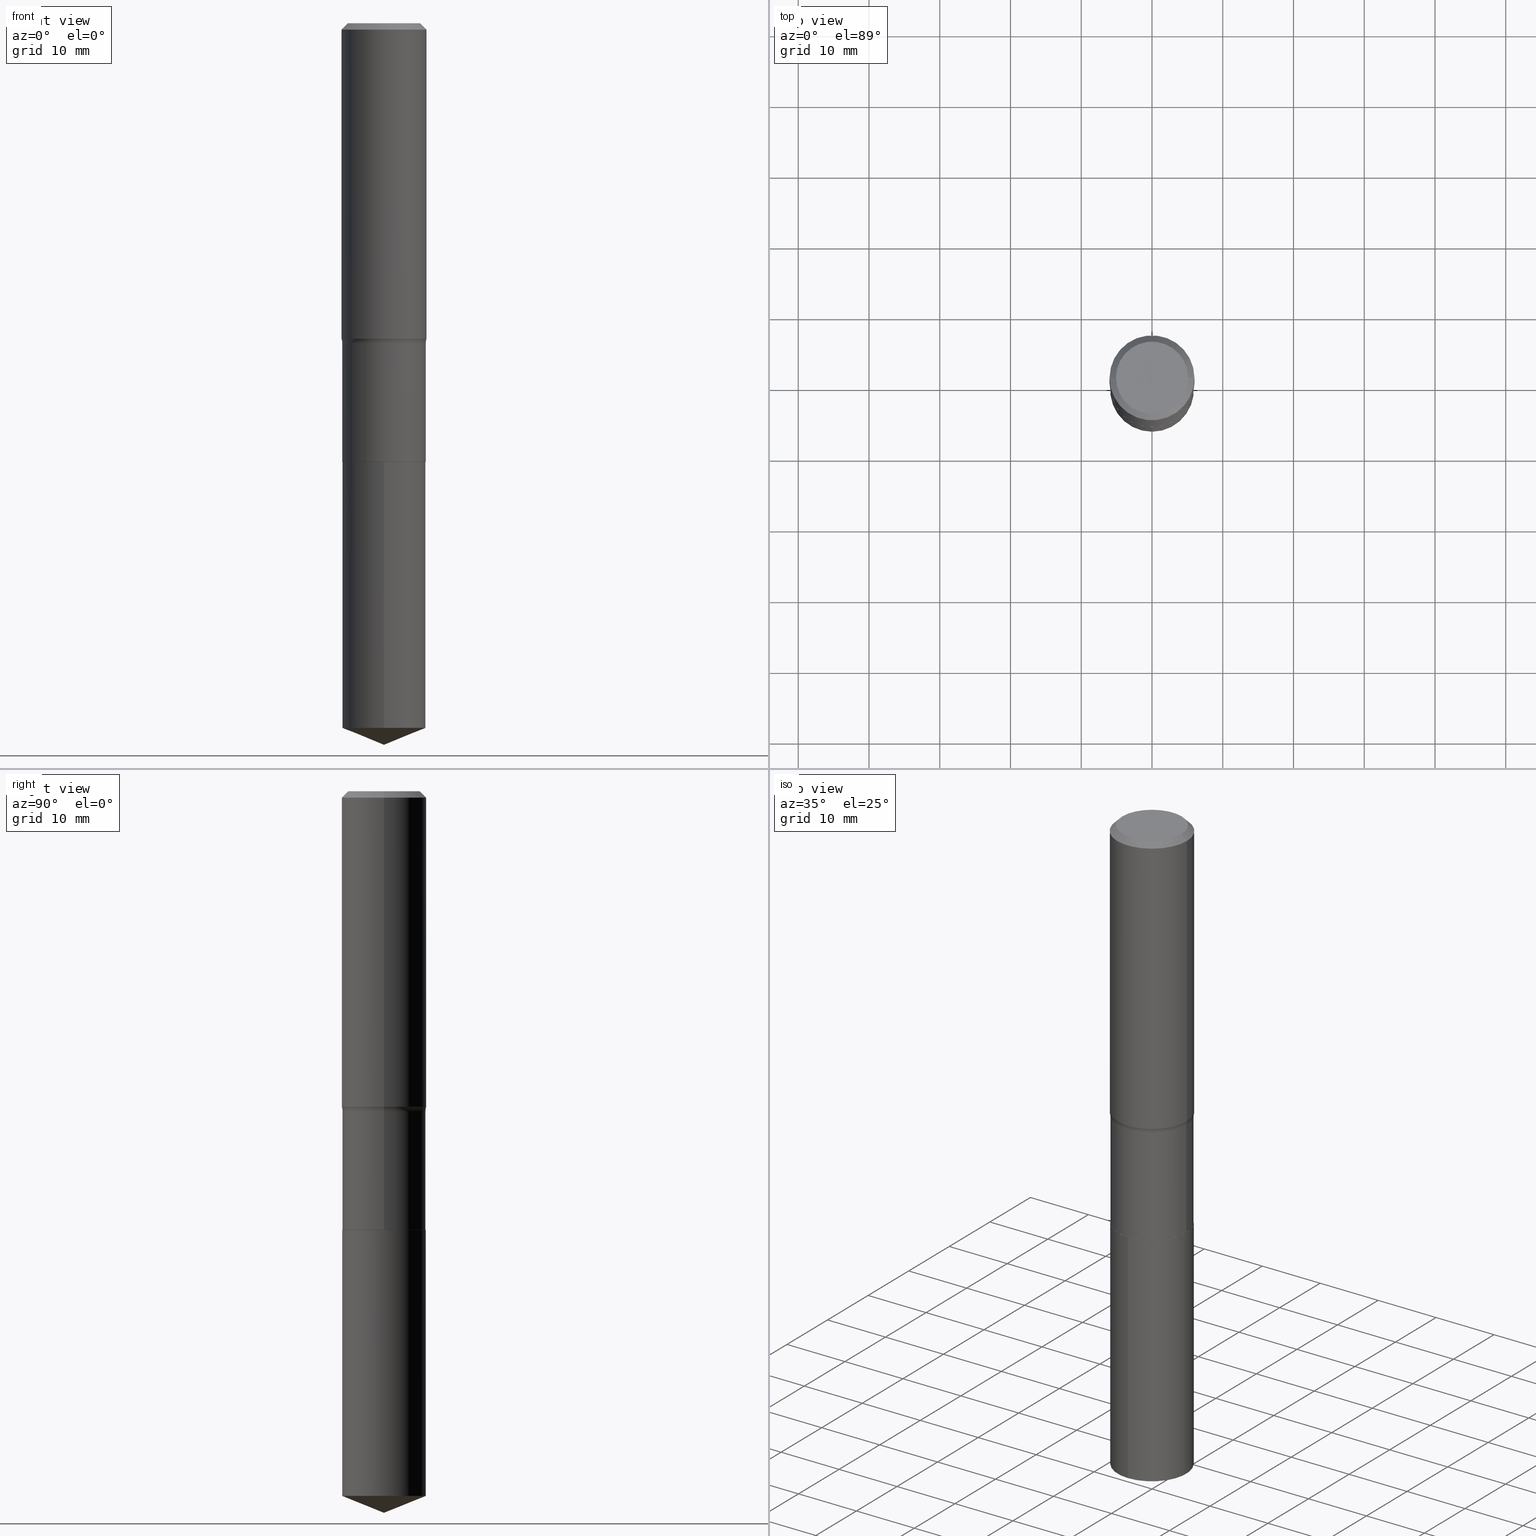
[diagram: canonical four-view strip — front | top / right | iso, engineering-drawing reading convention]
A machine part, canonical four-view strip (front | top / right | iso — engineering-drawing reading convention). The complete STEP part file that produces these views, byte-faithful:
ISO-10303-21;
HEADER;
FILE_DESCRIPTION (( 'STEP AP203' ),
    '1' );
FILE_NAME ('69208.STEP',
    '2024-04-19T17:23:39',
    ( '' ),
    ( '' ),
    'SwSTEP 2.0',
    'SolidWorks 2023',
    '' );
FILE_SCHEMA (( 'CONFIG_CONTROL_DESIGN' ));
ENDSEC;

DATA;
#1 = EDGE_CURVE ( 'NONE', #489, #132, #307, .T. ) ;
#2 = DIRECTION ( 'NONE',  ( 2.438088387897960049E-29, -3.491481338843145188E-15, -1.000000000000000000 ) ) ;
#3 = DIRECTION ( 'NONE',  ( -6.982962677686265922E-15, -1.000000000000000000, 3.527999991817817286E-15 ) ) ;
#4 = CALENDAR_DATE ( 2024, 19, 4 ) ;
#5 = DIRECTION ( 'NONE',  ( -2.445468806185136597E-29, 3.491481338843145583E-15, 1.000000000000000000 ) ) ;
#6 = DIRECTION ( 'NONE',  ( -1.000000000000000000, 6.982962677686266711E-15, 0.000000000000000000 ) ) ;
#7 = CARTESIAN_POINT ( 'NONE',  ( -0.2322999999999999510, -5.718180590457746059E-15, -1.780599999999999961 ) ) ;
#8 = FACE_OUTER_BOUND ( 'NONE', #26, .T. ) ;
#9 = CIRCLE ( 'NONE', #163, 0.2323000000000000065 ) ;
#10 = DIRECTION ( 'NONE',  ( -6.982962677686265922E-15, -1.000000000000000000, 2.351999994545211393E-15 ) ) ;
#11 =( LENGTH_UNIT ( ) NAMED_UNIT ( * ) SI_UNIT ( $, .METRE. ) );
#12 = LINE ( 'NONE', #427, #331 ) ;
#13 = ORIENTED_EDGE ( 'NONE', *, *, #346, .T. ) ;
#14 = LOCAL_TIME ( 13, 23, 39.00000000000000000, #460 ) ;
#15 = SECURITY_CLASSIFICATION ( '', '', #19 ) ;
#16 = VERTEX_POINT ( 'NONE', #221 ) ;
#17 = ORIENTED_EDGE ( 'NONE', *, *, #205, .F. ) ;
#18 = ORIENTED_EDGE ( 'NONE', *, *, #181, .T. ) ;
#19 = SECURITY_CLASSIFICATION_LEVEL ( 'unclassified' ) ;
#20 = AXIS2_PLACEMENT_3D ( 'NONE', #295, #47, #3 ) ;
#21 = ORIENTED_EDGE ( 'NONE', *, *, #309, .F. ) ;
#22 = LINE ( 'NONE', #329, #83 ) ;
#23 = DATE_AND_TIME ( #123, #422 ) ;
#24 = ORIENTED_EDGE ( 'NONE', *, *, #28, .F. ) ;
#25 = DIRECTION ( 'NONE',  ( -6.474490251793185729E-15, -0.9271838545667875353, 0.3746065934159116817 ) ) ;
#26 = EDGE_LOOP ( 'NONE', ( #278, #65, #206, #325 ) ) ;
#27 = DIRECTION ( 'NONE',  ( 1.000000000000000000, -6.982962677686265922E-15, 4.876176775795935232E-29 ) ) ;
#28 = EDGE_CURVE ( 'NONE', #357, #86, #297, .T. ) ;
#29 = EDGE_CURVE ( 'NONE', #132, #321, #423, .T. ) ;
#30 = ORIENTED_EDGE ( 'NONE', *, *, #441, .F. ) ;
#31 = VECTOR ( 'NONE', #25, 39.37007874015748143 ) ;
#32 = CARTESIAN_POINT ( 'NONE',  ( -0.2322999999999999787, 1.650590775170712581E-15, -1.142668621466214566E-29 ) ) ;
#33 = ORIENTED_EDGE ( 'NONE', *, *, #29, .T. ) ;
#34 = DIRECTION ( 'NONE',  ( 0.7071067811865453523, -7.319954787623248157E-15, -0.7071067811865496822 ) ) ;
#35 = CARTESIAN_POINT ( 'NONE',  ( 9.590685138083693087E-29, -1.369313891512540688E-14, -3.921844707738494140 ) ) ;
#36 = DIRECTION ( 'NONE',  ( 1.000000000000000000, -6.982962677686268288E-15, 0.000000000000000000 ) ) ;
#37 = LINE ( 'NONE', #46, #219 ) ;
#38 = PRODUCT_RELATED_PRODUCT_CATEGORY ( 'detail', '', ( #432 ) ) ;
#39 = AXIS2_PLACEMENT_3D ( 'NONE', #173, #326, #93 ) ;
#40 = FACE_OUTER_BOUND ( 'NONE', #68, .T. ) ;
#41 = DIRECTION ( 'NONE',  ( 1.000000000000000000, -6.982962677686267499E-15, 0.000000000000000000 ) ) ;
#42 = CARTESIAN_POINT ( 'NONE',  ( -0.3102999999999999092, -4.012117562880514402E-15, -1.780599999999999961 ) ) ;
#43 = CARTESIAN_POINT ( 'NONE',  ( 4.354401756293253585E-29, -6.216931671944104634E-15, -1.780599999999999961 ) ) ;
#44 = CARTESIAN_POINT ( 'NONE',  ( 0.2318000000000000060, -1.014100754866991103E-14, -2.440900000000000070 ) ) ;
#45 = ADVANCED_FACE ( 'NONE', ( #77 ), #184, .T. ) ;
#46 = CARTESIAN_POINT ( 'NONE',  ( 0.2318000000000000060, -1.014100754866991103E-14, -2.440900000000000070 ) ) ;
#47 = DIRECTION ( 'NONE',  ( -2.445425754346182208E-29, 3.491542991526886614E-15, 1.000000000000000000 ) ) ;
#48 = AXIS2_PLACEMENT_3D ( 'NONE', #98, #370, #27 ) ;
#49 = DIRECTION ( 'NONE',  ( -2.445468806185136597E-29, 3.491481338843145583E-15, 1.000000000000000000 ) ) ;
#50 = COORDINATED_UNIVERSAL_TIME_OFFSET ( 5, 0, .BEHIND. ) ;
#51 = ORIENTED_EDGE ( 'NONE', *, *, #1, .F. ) ;
#52 = APPROVAL_STATUS ( 'not_yet_approved' ) ;
#53 = ADVANCED_FACE ( 'NONE', ( #146 ), #428, .F. ) ;
#54 = AXIS2_PLACEMENT_3D ( 'NONE', #345, #388, #156 ) ;
#55 = CONICAL_SURFACE ( 'NONE', #316, 97.44436430772927338, 1.186823891356147964 ) ;
#56 = ORIENTED_EDGE ( 'NONE', *, *, #125, .T. ) ;
#57 = DATE_AND_TIME ( #88, #300 ) ;
#58 = DIRECTION ( 'NONE',  ( -2.445425754346182208E-29, 3.491542991526886614E-15, 1.000000000000000000 ) ) ;
#59 = AXIS2_PLACEMENT_3D ( 'NONE', #289, #5, #116 ) ;
#60 =( GEOMETRIC_REPRESENTATION_CONTEXT ( 3 ) GLOBAL_UNCERTAINTY_ASSIGNED_CONTEXT ( ( #411 ) ) GLOBAL_UNIT_ASSIGNED_CONTEXT ( ( #178, #110, #73 ) ) REPRESENTATION_CONTEXT ( 'NONE', 'WORKASPACE' ) );
#61 = ORIENTED_EDGE ( 'NONE', *, *, #457, .F. ) ;
#62 = CARTESIAN_POINT ( 'NONE',  ( -0.2007700000000000040, 1.463821008716677338E-15, 4.096137381438094301E-18 ) ) ;
#63 = ORIENTED_EDGE ( 'NONE', *, *, #291, .T. ) ;
#64 = CARTESIAN_POINT ( 'NONE',  ( 5.969144809017299038E-29, -8.522356799982232966E-15, -2.440900000000000070 ) ) ;
#65 = ORIENTED_EDGE ( 'NONE', *, *, #294, .T. ) ;
#66 = DIRECTION ( 'NONE',  ( -2.445468806185136877E-29, 3.491481338843145188E-15, 1.000000000000000000 ) ) ;
#67 = CIRCLE ( 'NONE', #484, 0.07799999999999995826 ) ;
#68 = EDGE_LOOP ( 'NONE', ( #198, #157 ) ) ;
#69 = CARTESIAN_POINT ( 'NONE',  ( -1.001697619218023151E-46, 1.430158722866391908E-32, 4.096137381448114529E-18 ) ) ;
#70 = CARTESIAN_POINT ( 'NONE',  ( -1.622142230026423645E-15, -0.2323000000000136622, -3.921844707738493696 ) ) ;
#71 = EDGE_CURVE ( 'NONE', #489, #97, #255, .T. ) ;
#72 = CARTESIAN_POINT ( 'NONE',  ( 4.354401756293253585E-29, -6.216931671944104634E-15, -1.780599999999999961 ) ) ;
#73 =( NAMED_UNIT ( * ) SI_UNIT ( $, .STERADIAN. ) SOLID_ANGLE_UNIT ( ) );
#74 = DIRECTION ( 'NONE',  ( 1.000000000000000000, -6.982962677686268288E-15, 4.883557194083113462E-29 ) ) ;
#75 = LOCAL_TIME ( 13, 23, 39.00000000000000000, #50 ) ;
#76 = CARTESIAN_POINT ( 'NONE',  ( 5.967922074614207358E-29, -8.520611059312812251E-15, -2.440399999999999903 ) ) ;
#77 = FACE_OUTER_BOUND ( 'NONE', #241, .T. ) ;
#78 = CYLINDRICAL_SURFACE ( 'NONE', #332, 0.2322999999999999787 ) ;
#79 = CYLINDRICAL_SURFACE ( 'NONE', #392, 0.2362000000000001321 ) ;
#80 = CYLINDRICAL_SURFACE ( 'NONE', #20, 0.2323000000000000065 ) ;
#81 = DIRECTION ( 'NONE',  ( 1.000000000000000000, -6.982962677686268288E-15, 0.000000000000000000 ) ) ;
#82 = CIRCLE ( 'NONE', #191, 0.2323000000000000065 ) ;
#83 = VECTOR ( 'NONE', #287, 39.37007874015748143 ) ;
#84 = DATE_AND_TIME ( #344, #14 ) ;
#85 = ADVANCED_FACE ( 'NONE', ( #222 ), #79, .T. ) ;
#86 = VERTEX_POINT ( 'NONE', #7 ) ;
#87 = CC_DESIGN_PERSON_AND_ORGANIZATION_ASSIGNMENT ( #94, #402, ( #350 ) ) ;
#88 = CALENDAR_DATE ( 2024, 19, 4 ) ;
#89 = VERTEX_POINT ( 'NONE', #147 ) ;
#90 = AXIS2_PLACEMENT_3D ( 'NONE', #69, #240, #102 ) ;
#91 = PERSON_AND_ORGANIZATION ( #274, #399 ) ;
#92 = ORIENTED_EDGE ( 'NONE', *, *, #291, .F. ) ;
#93 = DIRECTION ( 'NONE',  ( -6.982962677686265922E-15, -1.000000000000000000, 3.527999991817817286E-15 ) ) ;
#94 = PERSON_AND_ORGANIZATION ( #274, #399 ) ;
#95 = AXIS2_PLACEMENT_3D ( 'NONE', #72, #467, #41 ) ;
#96 = AXIS2_PLACEMENT_3D ( 'NONE', #249, #414, #142 ) ;
#97 = VERTEX_POINT ( 'NONE', #383 ) ;
#98 = CARTESIAN_POINT ( 'NONE',  ( 0.000000000000000000, 0.000000000000000000, 0.000000000000000000 ) ) ;
#99 = VERTEX_POINT ( 'NONE', #372 ) ;
#100 = DIRECTION ( 'NONE',  ( -2.445468806185136597E-29, 3.491481338843145583E-15, 1.000000000000000000 ) ) ;
#101 = ORIENTED_EDGE ( 'NONE', *, *, #341, .F. ) ;
#102 = DIRECTION ( 'NONE',  ( 1.000000000000000000, -6.982962677686266711E-15, 4.876140833081945105E-29 ) ) ;
#103 = CONICAL_SURFACE ( 'NONE', #199, 0.2318000000000000060, 0.7853981633972775267 ) ;
#104 = CIRCLE ( 'NONE', #259, 0.2361999999999999933 ) ;
#105 = ORIENTED_EDGE ( 'NONE', *, *, #408, .F. ) ;
#106 = FACE_OUTER_BOUND ( 'NONE', #286, .T. ) ;
#107 = ADVANCED_FACE ( 'NONE', ( #304 ), #149, .F. ) ;
#108 = EDGE_CURVE ( 'NONE', #165, #16, #186, .T. ) ;
#109 = DIRECTION ( 'NONE',  ( -2.445468806185136597E-29, 3.491481338843145583E-15, 1.000000000000000000 ) ) ;
#110 =( NAMED_UNIT ( * ) PLANE_ANGLE_UNIT ( ) SI_UNIT ( $, .RADIAN. ) );
#111 = CARTESIAN_POINT ( 'NONE',  ( 5.969144809017300159E-29, -8.522356799982234543E-15, -2.440900000000000070 ) ) ;
#112 = FACE_OUTER_BOUND ( 'NONE', #129, .T. ) ;
#113 = EDGE_CURVE ( 'NONE', #16, #165, #82, .T. ) ;
#114 = DIRECTION ( 'NONE',  ( -2.445468806185136597E-29, 3.491481338843145583E-15, 1.000000000000000000 ) ) ;
#115 = CARTESIAN_POINT ( 'NONE',  ( -0.2361999999999999933, 1.525672600634282748E-15, -0.03543000000000021826 ) ) ;
#116 = DIRECTION ( 'NONE',  ( 1.000000000000000000, -6.982962677686265922E-15, 0.000000000000000000 ) ) ;
#117 = CARTESIAN_POINT ( 'NONE',  ( 9.590685138083693087E-29, -1.369313891512540688E-14, -3.921844707738494140 ) ) ;
#118 = APPLICATION_CONTEXT ( 'configuration controlled 3d designs of mechanical parts and assemblies' ) ;
#119 = DESIGN_CONTEXT ( 'detailed design', #118, 'design' ) ;
#120 = PERSON_AND_ORGANIZATION ( #274, #399 ) ;
#121 = DIRECTION ( 'NONE',  ( -6.982962677686265922E-15, -1.000000000000000000, 3.527999991817817286E-15 ) ) ;
#122 = CIRCLE ( 'NONE', #248, 0.2323000000000000065 ) ;
#123 = CALENDAR_DATE ( 2024, 19, 4 ) ;
#124 = ORIENTED_EDGE ( 'NONE', *, *, #448, .T. ) ;
#125 = EDGE_CURVE ( 'NONE', #474, #404, #37, .T. ) ;
#126 = EDGE_LOOP ( 'NONE', ( #245, #51, #472, #215 ) ) ;
#127 = CIRCLE ( 'NONE', #143, 0.2323000000000000065 ) ;
#128 = CIRCLE ( 'NONE', #238, 0.07799999999999995826 ) ;
#129 = EDGE_LOOP ( 'NONE', ( #101, #18, #260, #136 ) ) ;
#130 = DIRECTION ( 'NONE',  ( -2.445425754346182208E-29, 3.491542991526886614E-15, 1.000000000000000000 ) ) ;
#131 = DATE_AND_TIME ( #314, #431 ) ;
#132 = VERTEX_POINT ( 'NONE', #266 ) ;
#133 = CARTESIAN_POINT ( 'NONE',  ( 4.294841159874141345E-29, -6.131894925451270477E-15, -1.756244507806245192 ) ) ;
#134 = APPROVAL_PERSON_ORGANIZATION ( #475, #469, #320 ) ;
#135 = CC_DESIGN_SECURITY_CLASSIFICATION ( #15, ( #350 ) ) ;
#136 = ORIENTED_EDGE ( 'NONE', *, *, #175, .F. ) ;
#137 = FACE_OUTER_BOUND ( 'NONE', #318, .T. ) ;
#138 = ORIENTED_EDGE ( 'NONE', *, *, #113, .T. ) ;
#139 = DIRECTION ( 'NONE',  ( 1.000000000000000000, -6.982962677686266711E-15, 0.000000000000000000 ) ) ;
#140 = ORIENTED_EDGE ( 'NONE', *, *, #220, .T. ) ;
#141 = CYLINDRICAL_SURFACE ( 'NONE', #48, 0.2322999999999999787 ) ;
#142 = DIRECTION ( 'NONE',  ( 1.000000000000000000, 0.000000000000000000, 0.000000000000000000 ) ) ;
#143 = AXIS2_PLACEMENT_3D ( 'NONE', #455, #109, #252 ) ;
#144 = DIRECTION ( 'NONE',  ( 1.000000000000000000, -6.982962677686266711E-15, 4.876176775795936353E-29 ) ) ;
#145 = CARTESIAN_POINT ( 'NONE',  ( -1.622142230026459933E-15, -0.2323000000000085552, -2.440899999999999181 ) ) ;
#146 = FACE_OUTER_BOUND ( 'NONE', #406, .T. ) ;
#147 = CARTESIAN_POINT ( 'NONE',  ( -0.2318000000000000060, -6.872669511316210280E-15, -2.440900000000000070 ) ) ;
#148 = DIRECTION ( 'NONE',  ( -2.445468806185136597E-29, 3.491481338843145583E-15, 1.000000000000000000 ) ) ;
#149 = TOROIDAL_SURFACE ( 'NONE', #421, 0.3102999999999999092, 0.07799999999999995826 ) ;
#150 = DIRECTION ( 'NONE',  ( 1.000000000000000000, -6.982962677686268288E-15, 4.883557194083113462E-29 ) ) ;
#151 = DIRECTION ( 'NONE',  ( -2.445425754346182208E-29, 3.491542991526886220E-15, 1.000000000000000000 ) ) ;
#152 = APPROVAL_PERSON_ORGANIZATION ( #91, #189, #477 ) ;
#153 = PERSON_AND_ORGANIZATION_ROLE ( 'design_owner' ) ;
#154 = DIRECTION ( 'NONE',  ( -2.445425754346182208E-29, 3.491542991526886614E-15, 1.000000000000000000 ) ) ;
#155 = DIRECTION ( 'NONE',  ( 2.445425754346182208E-29, -3.491542991526886220E-15, -1.000000000000000000 ) ) ;
#156 = DIRECTION ( 'NONE',  ( -1.000000000000000000, 6.982962677686266711E-15, 0.000000000000000000 ) ) ;
#157 = ORIENTED_EDGE ( 'NONE', *, *, #205, .T. ) ;
#158 = ORIENTED_EDGE ( 'NONE', *, *, #226, .T. ) ;
#159 = AXIS2_PLACEMENT_3D ( 'NONE', #43, #381, #74 ) ;
#160 = EDGE_LOOP ( 'NONE', ( #92, #158, #169, #30 ) ) ;
#161 = CC_DESIGN_PERSON_AND_ORGANIZATION_ASSIGNMENT ( #164, #317, ( #15 ) ) ;
#162 = VECTOR ( 'NONE', #34, 39.37007874015748143 ) ;
#163 = AXIS2_PLACEMENT_3D ( 'NONE', #64, #237, #204 ) ;
#164 = PERSON_AND_ORGANIZATION ( #274, #399 ) ;
#165 = VERTEX_POINT ( 'NONE', #70 ) ;
#166 = LINE ( 'NONE', #32, #412 ) ;
#167 = ORIENTED_EDGE ( 'NONE', *, *, #371, .F. ) ;
#168 = CARTESIAN_POINT ( 'NONE',  ( 5.969144809017300159E-29, -8.522356799982234543E-15, -2.440900000000000070 ) ) ;
#169 = ORIENTED_EDGE ( 'NONE', *, *, #371, .T. ) ;
#170 = CARTESIAN_POINT ( 'NONE',  ( -0.2318000000000000060, -6.875318738490322270E-15, -2.440900000000000070 ) ) ;
#171 = CIRCLE ( 'NONE', #201, 0.2007700000000000040 ) ;
#172 = ORIENTED_EDGE ( 'NONE', *, *, #244, .T. ) ;
#173 = CARTESIAN_POINT ( 'NONE',  ( 5.969144809017299038E-29, -8.522356799982232966E-15, -2.440900000000000070 ) ) ;
#174 = ORIENTED_EDGE ( 'NONE', *, *, #108, .F. ) ;
#175 = EDGE_CURVE ( 'NONE', #86, #357, #437, .T. ) ;
#176 = LINE ( 'NONE', #170, #298 ) ;
#177 = CARTESIAN_POINT ( 'NONE',  ( 4.354401756293253585E-29, -6.216931671944104634E-15, -1.780599999999999961 ) ) ;
#178 =( CONVERSION_BASED_UNIT ( 'INCH', #373 ) LENGTH_UNIT ( ) NAMED_UNIT ( #263 ) );
#179 = AXIS2_PLACEMENT_3D ( 'NONE', #182, #224, #418 ) ;
#180 = CARTESIAN_POINT ( 'NONE',  ( -5.008488096090115757E-47, 7.150793614331959538E-33, 2.048068690724057264E-18 ) ) ;
#181 = EDGE_CURVE ( 'NONE', #447, #404, #127, .T. ) ;
#182 = CARTESIAN_POINT ( 'NONE',  ( 0.000000000000000000, 0.000000000000000000, 0.000000000000000000 ) ) ;
#183 = CARTESIAN_POINT ( 'NONE',  ( 0.2323000000000000065, -1.014275328933933174E-14, -2.440399999999999903 ) ) ;
#184 = CYLINDRICAL_SURFACE ( 'NONE', #179, 0.2362000000000001321 ) ;
#185 = DIRECTION ( 'NONE',  ( -2.445468806185136597E-29, 3.491481338843145583E-15, 1.000000000000000000 ) ) ;
#186 = CIRCLE ( 'NONE', #279, 0.2323000000000000065 ) ;
#187 = CIRCLE ( 'NONE', #430, 0.2318000000000000060 ) ;
#188 = CARTESIAN_POINT ( 'NONE',  ( 0.2362000000000002431, -7.781270709920767791E-15, -1.756244507806245192 ) ) ;
#189 = APPROVAL ( #272, 'UNSPECIFIED' ) ;
#190 = FACE_OUTER_BOUND ( 'NONE', #160, .T. ) ;
#191 = AXIS2_PLACEMENT_3D ( 'NONE', #35, #154, #10 ) ;
#192 = CC_DESIGN_APPROVAL ( #469, ( #350 ) ) ;
#193 = ADVANCED_FACE ( 'NONE', ( #417 ), #374, .F. ) ;
#194 = ORIENTED_EDGE ( 'NONE', *, *, #294, .F. ) ;
#195 = APPROVAL_STATUS ( 'not_yet_approved' ) ;
#196 = ORIENTED_EDGE ( 'NONE', *, *, #403, .T. ) ;
#197 = PERSON_AND_ORGANIZATION ( #274, #399 ) ;
#198 = ORIENTED_EDGE ( 'NONE', *, *, #356, .T. ) ;
#199 = AXIS2_PLACEMENT_3D ( 'NONE', #111, #49, #81 ) ;
#200 = CARTESIAN_POINT ( 'NONE',  ( -0.2361999999999999933, -1.449497112777884254E-15, -0.03543000000000021826 ) ) ;
#201 = AXIS2_PLACEMENT_3D ( 'NONE', #319, #407, #364 ) ;
#202 = ADVANCED_FACE ( 'NONE', ( #458 ), #103, .T. ) ;
#203 = ORIENTED_EDGE ( 'NONE', *, *, #270, .T. ) ;
#204 = DIRECTION ( 'NONE',  ( -6.982962677686265922E-15, -1.000000000000000000, 3.527999991817817286E-15 ) ) ;
#205 = EDGE_CURVE ( 'NONE', #348, #308, #210, .T. ) ;
#206 = ORIENTED_EDGE ( 'NONE', *, *, #356, .F. ) ;
#207 = CARTESIAN_POINT ( 'NONE',  ( 0.2322999999999999510, -7.839073901970624126E-15, -1.780599999999999961 ) ) ;
#208 = ORIENTED_EDGE ( 'NONE', *, *, #226, .F. ) ;
#209 = CARTESIAN_POINT ( 'NONE',  ( 0.2361999999999999933, -1.744152810908849053E-15, -0.03543000000000021826 ) ) ;
#210 = CIRCLE ( 'NONE', #397, 0.2323000000000000065 ) ;
#211 = CONICAL_SURFACE ( 'NONE', #393, 97.44436430772927338, 1.186823891356147964 ) ;
#212 = EDGE_LOOP ( 'NONE', ( #203, #172, #236, #409 ) ) ;
#213 = DIRECTION ( 'NONE',  ( -6.982962677686265133E-15, -1.000000000000000000, 3.498761904101797187E-15 ) ) ;
#214 = ADVANCED_FACE ( 'NONE', ( #190 ), #258, .T. ) ;
#215 = ORIENTED_EDGE ( 'NONE', *, *, #28, .T. ) ;
#216 = ORIENTED_EDGE ( 'NONE', *, *, #1, .T. ) ;
#217 = DIRECTION ( 'NONE',  ( 1.000000000000000000, -6.982962677686265922E-15, 0.000000000000000000 ) ) ;
#218 = EDGE_CURVE ( 'NONE', #404, #357, #12, .T. ) ;
#219 = VECTOR ( 'NONE', #343, 39.37007874015748143 ) ;
#220 = EDGE_CURVE ( 'NONE', #132, #489, #315, .T. ) ;
#221 = CARTESIAN_POINT ( 'NONE',  ( 1.650590775170807836E-15, 0.2322999999999862675, -3.921844707738494584 ) ) ;
#222 = FACE_OUTER_BOUND ( 'NONE', #353, .T. ) ;
#223 = DIRECTION ( 'NONE',  ( -2.445468806185136597E-29, 3.491481338843145583E-15, 1.000000000000000000 ) ) ;
#224 = DIRECTION ( 'NONE',  ( -2.445468806185136597E-29, 3.491481338843145583E-15, 1.000000000000000000 ) ) ;
#225 = DIRECTION ( 'NONE',  ( 1.000000000000000000, -6.982962677686265922E-15, 4.876176775795935232E-29 ) ) ;
#226 = EDGE_CURVE ( 'NONE', #99, #97, #405, .T. ) ;
#227 = DIRECTION ( 'NONE',  ( -2.445425754346182208E-29, 3.491542991526886614E-15, 1.000000000000000000 ) ) ;
#228 = AXIS2_PLACEMENT_3D ( 'NONE', #337, #334, #6 ) ;
#229 = CC_DESIGN_APPROVAL ( #189, ( #15 ) ) ;
#230 = PERSON_AND_ORGANIZATION_ROLE ( 'creator' ) ;
#231 = VERTEX_POINT ( 'NONE', #285 ) ;
#232 = ORIENTED_EDGE ( 'NONE', *, *, #181, .F. ) ;
#233 = CLOSED_SHELL ( 'NONE', ( #435, #302, #310, #351, #466 ) ) ;
#234 = AXIS2_PLACEMENT_3D ( 'NONE', #253, #155, #290 ) ;
#235 = ADVANCED_FACE ( 'NONE', ( #106 ), #141, .T. ) ;
#236 = ORIENTED_EDGE ( 'NONE', *, *, #403, .F. ) ;
#237 = DIRECTION ( 'NONE',  ( -2.445425754346182208E-29, 3.491542991526886614E-15, 1.000000000000000000 ) ) ;
#238 = AXIS2_PLACEMENT_3D ( 'NONE', #396, #359, #277 ) ;
#239 = EDGE_LOOP ( 'NONE', ( #194, #138, #124, #17 ) ) ;
#240 = DIRECTION ( 'NONE',  ( -2.445468806185136597E-29, 3.491481338843145583E-15, 1.000000000000000000 ) ) ;
#241 = EDGE_LOOP ( 'NONE', ( #439, #140, #450, #61 ) ) ;
#242 = CC_DESIGN_DATE_AND_TIME_ASSIGNMENT ( #257, #380, ( #355 ) ) ;
#243 = FACE_OUTER_BOUND ( 'NONE', #239, .T. ) ;
#244 = EDGE_CURVE ( 'NONE', #89, #447, #176, .T. ) ;
#245 = ORIENTED_EDGE ( 'NONE', *, *, #400, .F. ) ;
#246 = DIRECTION ( 'NONE',  ( -2.445468806185136597E-29, 3.491481338843145583E-15, 1.000000000000000000 ) ) ;
#247 = AXIS2_PLACEMENT_3D ( 'NONE', #180, #2, #292 ) ;
#248 = AXIS2_PLACEMENT_3D ( 'NONE', #76, #223, #217 ) ;
#249 = CARTESIAN_POINT ( 'NONE',  ( 0.000000000000000000, 0.000000000000000000, 0.000000000000000000 ) ) ;
#250 = VERTEX_POINT ( 'NONE', #62 ) ;
#251 = DIRECTION ( 'NONE',  ( 1.000000000000000000, -6.982962677686266711E-15, 0.000000000000000000 ) ) ;
#252 = DIRECTION ( 'NONE',  ( 1.000000000000000000, -6.982962677686265922E-15, 0.000000000000000000 ) ) ;
#253 = CARTESIAN_POINT ( 'NONE',  ( 5.969144809017299038E-29, -8.522356799982232966E-15, -2.440900000000000070 ) ) ;
#254 = APPROVAL ( #52, 'UNSPECIFIED' ) ;
#255 = LINE ( 'NONE', #464, #442 ) ;
#256 = DIRECTION ( 'NONE',  ( 6.588037525764799179E-15, 0.9271838545667900888, 0.3746065934159051869 ) ) ;
#257 = DATE_AND_TIME ( #4, #75 ) ;
#258 = CONICAL_SURFACE ( 'NONE', #54, 0.2361999999999999933, 0.7853981633974452814 ) ;
#259 = AXIS2_PLACEMENT_3D ( 'NONE', #482, #488, #139 ) ;
#260 = ORIENTED_EDGE ( 'NONE', *, *, #218, .T. ) ;
#261 = LINE ( 'NONE', #115, #366 ) ;
#262 = DIRECTION ( 'NONE',  ( -2.445425754346182208E-29, 3.491542991526886614E-15, 1.000000000000000000 ) ) ;
#263 = DIMENSIONAL_EXPONENTS ( 1.000000000000000000, 0.000000000000000000, 0.000000000000000000, 0.000000000000000000, 0.000000000000000000, 0.000000000000000000, 0.000000000000000000 ) ;
#264 = DIRECTION ( 'NONE',  ( -2.438088387897960049E-29, 3.491481338843145188E-15, 1.000000000000000000 ) ) ;
#265 = EDGE_CURVE ( 'NONE', #89, #474, #342, .T. ) ;
#266 = CARTESIAN_POINT ( 'NONE',  ( -0.2362000000000002431, -4.453592983585912505E-15, -1.756244507806245192 ) ) ;
#267 = APPLICATION_PROTOCOL_DEFINITION ( 'international standard', 'config_control_design', 1994, #118 ) ;
#268 = CIRCLE ( 'NONE', #90, 0.2007700000000000040 ) ;
#269 = PRODUCT_DEFINITION_SHAPE ( 'NONE', 'NONE',  #355 ) ;
#270 = EDGE_CURVE ( 'NONE', #474, #89, #187, .T. ) ;
#271 = ORIENTED_EDGE ( 'NONE', *, *, #265, .T. ) ;
#272 = APPROVAL_STATUS ( 'not_yet_approved' ) ;
#273 = CC_DESIGN_DATE_AND_TIME_ASSIGNMENT ( #131, #349, ( #15 ) ) ;
#274 = PERSON ( 'UNSPECIFIED', 'UNSPECIFIED', 'UNSPECIFIED', ('UNSPECIFIED'), ('UNSPECIFIED'), ('UNSPECIFIED') ) ;
#275 = COORDINATED_UNIVERSAL_TIME_OFFSET ( 5, 0, .BEHIND. ) ;
#276 = ORIENTED_EDGE ( 'NONE', *, *, #265, .F. ) ;
#277 = DIRECTION ( 'NONE',  ( 1.000000000000000000, -6.982962677686274599E-15, 0.000000000000000000 ) ) ;
#278 = ORIENTED_EDGE ( 'NONE', *, *, #108, .T. ) ;
#279 = AXIS2_PLACEMENT_3D ( 'NONE', #117, #262, #425 ) ;
#280 = DIRECTION ( 'NONE',  ( 1.000000000000000000, -6.982962677686268288E-15, 0.000000000000000000 ) ) ;
#281 = CC_DESIGN_APPROVAL ( #254, ( #355 ) ) ;
#282 = EDGE_LOOP ( 'NONE', ( #360, #276 ) ) ;
#283 = CARTESIAN_POINT ( 'NONE',  ( -8.645640321485652588E-28, 1.234414837980197635E-13, 35.35437874015748605 ) ) ;
#284 = EDGE_LOOP ( 'NONE', ( #13, #63 ) ) ;
#285 = CARTESIAN_POINT ( 'NONE',  ( 9.820096201727962755E-29, -1.402098919107451851E-14, -4.015699999999999825 ) ) ;
#286 = EDGE_LOOP ( 'NONE', ( #196, #434, #24, #365 ) ) ;
#287 = DIRECTION ( 'NONE',  ( -2.445425754346182208E-29, 3.491542991526886220E-15, 1.000000000000000000 ) ) ;
#288 = VECTOR ( 'NONE', #151, 39.37007874015748143 ) ;
#289 = CARTESIAN_POINT ( 'NONE',  ( 4.294841159874141345E-29, -6.131894925451270477E-15, -1.756244507806245192 ) ) ;
#290 = DIRECTION ( 'NONE',  ( 6.982962677686265922E-15, 1.000000000000000000, -3.491542991526886220E-15 ) ) ;
#291 = EDGE_CURVE ( 'NONE', #99, #250, #268, .T. ) ;
#292 = DIRECTION ( 'NONE',  ( -1.000000000000000000, 6.982962677686265922E-15, -4.876176775795935793E-29 ) ) ;
#293 = FACE_OUTER_BOUND ( 'NONE', #323, .T. ) ;
#294 = EDGE_CURVE ( 'NONE', #16, #348, #22, .T. ) ;
#295 = CARTESIAN_POINT ( 'NONE',  ( 5.969144809017299038E-29, -8.522356799982232966E-15, -2.440900000000000070 ) ) ;
#296 = APPROVAL_DATE_TIME ( #84, #254 ) ;
#297 = CIRCLE ( 'NONE', #95, 0.2322999999999999510 ) ;
#298 = VECTOR ( 'NONE', #453, 39.37007874015748143 ) ;
#299 = DIRECTION ( 'NONE',  ( -2.445468806185136877E-29, 3.491481338843145188E-15, 1.000000000000000000 ) ) ;
#300 = LOCAL_TIME ( 13, 23, 39.00000000000000000, #436 ) ;
#301 = CARTESIAN_POINT ( 'NONE',  ( 8.664295980313993487E-31, -1.237031838352134079E-16, -0.03543000000000021826 ) ) ;
#302 = ADVANCED_FACE ( 'NONE', ( #490 ), #55, .T. ) ;
#303 = MANIFOLD_SOLID_BREP ( 'Body-Move/Copy2[1]', #233 ) ;
#304 = FACE_OUTER_BOUND ( 'NONE', #126, .T. ) ;
#305 = CARTESIAN_POINT ( 'NONE',  ( 5.969144809017300159E-29, -8.522356799982234543E-15, -2.440900000000000070 ) ) ;
#306 = CARTESIAN_POINT ( 'NONE',  ( 5.969144809017299038E-29, -8.522356799982232966E-15, -2.440900000000000070 ) ) ;
#307 = CIRCLE ( 'NONE', #59, 0.2362000000000002431 ) ;
#308 = VERTEX_POINT ( 'NONE', #485 ) ;
#309 = EDGE_CURVE ( 'NONE', #489, #357, #128, .T. ) ;
#310 = ADVANCED_FACE ( 'NONE', ( #137 ), #211, .T. ) ;
#311 = APPROVAL_DATE_TIME ( #57, #189 ) ;
#312 = ORIENTED_EDGE ( 'NONE', *, *, #408, .T. ) ;
#313 = SHAPE_DEFINITION_REPRESENTATION ( #269, #347 ) ;
#314 = CALENDAR_DATE ( 2024, 19, 4 ) ;
#315 = CIRCLE ( 'NONE', #385, 0.2362000000000002431 ) ;
#316 = AXIS2_PLACEMENT_3D ( 'NONE', #324, #130, #322 ) ;
#317 = PERSON_AND_ORGANIZATION_ROLE ( 'classification_officer' ) ;
#318 = EDGE_LOOP ( 'NONE', ( #105, #328, #445 ) ) ;
#319 = CARTESIAN_POINT ( 'NONE',  ( -1.001697619218023151E-46, 1.430158722866391908E-32, 4.096137381448114529E-18 ) ) ;
#320 = APPROVAL_ROLE ( '' ) ;
#321 = VERTEX_POINT ( 'NONE', #200 ) ;
#322 = DIRECTION ( 'NONE',  ( -6.982962677686265133E-15, -1.000000000000000000, 3.498761904101797187E-15 ) ) ;
#323 = EDGE_LOOP ( 'NONE', ( #208, #443, #363, #478 ) ) ;
#324 = CARTESIAN_POINT ( 'NONE',  ( -8.645640321485652588E-28, 1.234414837980197635E-13, 35.35437874015748605 ) ) ;
#325 = ORIENTED_EDGE ( 'NONE', *, *, #448, .F. ) ;
#326 = DIRECTION ( 'NONE',  ( -2.445425754346182208E-29, 3.491542991526886614E-15, 1.000000000000000000 ) ) ;
#327 = APPLICATION_PROTOCOL_DEFINITION ( 'international standard', 'config_control_design', 1994, #454 ) ;
#328 = ORIENTED_EDGE ( 'NONE', *, *, #362, .T. ) ;
#329 = CARTESIAN_POINT ( 'NONE',  ( 1.650590775170772140E-15, 0.2322999999999914578, -2.440900000000000514 ) ) ;
#330 = DIRECTION ( 'NONE',  ( -2.445468806185136597E-29, 3.491481338843145583E-15, 1.000000000000000000 ) ) ;
#331 = VECTOR ( 'NONE', #470, 39.37007874015748143 ) ;
#332 = AXIS2_PLACEMENT_3D ( 'NONE', #465, #384, #225 ) ;
#333 = DIRECTION ( 'NONE',  ( 1.000000000000000000, -6.982962677686267499E-15, 0.000000000000000000 ) ) ;
#334 = DIRECTION ( 'NONE',  ( 2.445468806185136597E-29, -3.491481338843145583E-15, -1.000000000000000000 ) ) ;
#335 = PERSON_AND_ORGANIZATION ( #274, #399 ) ;
#336 = CARTESIAN_POINT ( 'NONE',  ( 0.000000000000000000, 0.000000000000000000, 0.000000000000000000 ) ) ;
#337 = CARTESIAN_POINT ( 'NONE',  ( 8.664295980313993487E-31, -1.237031838352134079E-16, -0.03543000000000021826 ) ) ;
#338 = CC_DESIGN_PERSON_AND_ORGANIZATION_ASSIGNMENT ( #197, #354, ( #350 ) ) ;
#339 = DIRECTION ( 'NONE',  ( -2.445468806185136597E-29, 3.491481338843145583E-15, 1.000000000000000000 ) ) ;
#340 = CARTESIAN_POINT ( 'NONE',  ( 3.960362813734956062E-29, -1.139904694999737651E-14, -2.440900000000000070 ) ) ;
#341 = EDGE_CURVE ( 'NONE', #447, #86, #166, .T. ) ;
#342 = CIRCLE ( 'NONE', #471, 0.2318000000000000060 ) ;
#343 = DIRECTION ( 'NONE',  ( 0.7071067811864267805, -2.468850131080992517E-15, 0.7071067811866682540 ) ) ;
#344 = CALENDAR_DATE ( 2024, 19, 4 ) ;
#345 = CARTESIAN_POINT ( 'NONE',  ( 8.664295980313993487E-31, -1.237031838352134079E-16, -0.03543000000000021826 ) ) ;
#346 = EDGE_CURVE ( 'NONE', #250, #99, #171, .T. ) ;
#347 = ADVANCED_BREP_SHAPE_REPRESENTATION ( '69208', ( #303, #479, #96 ), #60 ) ;
#348 = VERTEX_POINT ( 'NONE', #440 ) ;
#349 = DATE_TIME_ROLE ( 'classification_date' ) ;
#350 = PRODUCT_DEFINITION_FORMATION_WITH_SPECIFIED_SOURCE ( 'ANY', '', #432, .NOT_KNOWN. ) ;
#351 = ADVANCED_FACE ( 'NONE', ( #243 ), #480, .T. ) ;
#352 = COORDINATED_UNIVERSAL_TIME_OFFSET ( 5, 0, .BEHIND. ) ;
#353 = EDGE_LOOP ( 'NONE', ( #216, #33, #167, #486 ) ) ;
#354 = PERSON_AND_ORGANIZATION_ROLE ( 'creator' ) ;
#355 = PRODUCT_DEFINITION ( 'UNKNOWN', '', #350, #119 ) ;
#356 = EDGE_CURVE ( 'NONE', #308, #348, #9, .T. ) ;
#357 = VERTEX_POINT ( 'NONE', #207 ) ;
#358 = AXIS2_PLACEMENT_3D ( 'NONE', #301, #148, #251 ) ;
#359 = DIRECTION ( 'NONE',  ( -6.982962677686266711E-15, -1.000000000000000000, 3.491481338843145583E-15 ) ) ;
#360 = ORIENTED_EDGE ( 'NONE', *, *, #270, .F. ) ;
#361 = CARTESIAN_POINT ( 'NONE',  ( 9.820096201727964997E-29, -1.402098919107452008E-14, -4.015699999999999825 ) ) ;
#362 = EDGE_CURVE ( 'NONE', #231, #165, #444, .T. ) ;
#363 = ORIENTED_EDGE ( 'NONE', *, *, #441, .T. ) ;
#364 = DIRECTION ( 'NONE',  ( 1.000000000000000000, -6.982962677686266711E-15, 4.876140833081945105E-29 ) ) ;
#365 = ORIENTED_EDGE ( 'NONE', *, *, #218, .F. ) ;
#366 = VECTOR ( 'NONE', #456, 39.37007874015748143 ) ;
#367 = CARTESIAN_POINT ( 'NONE',  ( 5.969144809017300159E-29, -8.522356799982234543E-15, -2.440900000000000070 ) ) ;
#368 = CONICAL_SURFACE ( 'NONE', #476, 0.2318000000000000060, 0.7853981633972775267 ) ;
#369 = ORIENTED_EDGE ( 'NONE', *, *, #400, .T. ) ;
#370 = DIRECTION ( 'NONE',  ( -2.445468806185136597E-29, 3.491481338843145583E-15, 1.000000000000000000 ) ) ;
#371 = EDGE_CURVE ( 'NONE', #97, #321, #104, .T. ) ;
#372 = CARTESIAN_POINT ( 'NONE',  ( 0.2007700000000000040, -1.560767496960719672E-15, 4.096137381458473721E-18 ) ) ;
#373 = LENGTH_MEASURE_WITH_UNIT ( LENGTH_MEASURE( 0.02539999999999999897 ), #11 );
#374 = PLANE ( 'NONE',  #247 ) ;
#375 = CARTESIAN_POINT ( 'NONE',  ( -0.2323000000000000342, -5.718180590457746059E-15, -2.440399999999999903 ) ) ;
#376 = VECTOR ( 'NONE', #491, 39.37007874015748143 ) ;
#377 = APPROVAL_PERSON_ORGANIZATION ( #429, #254, #386 ) ;
#378 = CARTESIAN_POINT ( 'NONE',  ( -0.2362000000000001321, 1.678301941865357577E-15, -1.161852468318209457E-29 ) ) ;
#379 = DIRECTION ( 'NONE',  ( 1.000000000000000000, -6.982962677686265922E-15, 4.876176775795935793E-29 ) ) ;
#380 = DATE_TIME_ROLE ( 'creation_date' ) ;
#381 = DIRECTION ( 'NONE',  ( -2.445468806185136597E-29, 3.491481338843145583E-15, 1.000000000000000000 ) ) ;
#382 = LINE ( 'NONE', #462, #387 ) ;
#383 = CARTESIAN_POINT ( 'NONE',  ( 0.2361999999999999933, -1.773078968304709514E-15, -0.03543000000000021826 ) ) ;
#384 = DIRECTION ( 'NONE',  ( -2.445468806185136597E-29, 3.491481338843145583E-15, 1.000000000000000000 ) ) ;
#385 = AXIS2_PLACEMENT_3D ( 'NONE', #133, #246, #401 ) ;
#386 = APPROVAL_ROLE ( '' ) ;
#387 = VECTOR ( 'NONE', #256, 39.37007874015748854 ) ;
#388 = DIRECTION ( 'NONE',  ( 2.445468806185136597E-29, -3.491481338843145583E-15, -1.000000000000000000 ) ) ;
#389 = ADVANCED_FACE ( 'NONE', ( #449 ), #368, .T. ) ;
#390 = EDGE_LOOP ( 'NONE', ( #481, #312, #174 ) ) ;
#391 = ADVANCED_FACE ( 'NONE', ( #419 ), #492, .F. ) ;
#392 = AXIS2_PLACEMENT_3D ( 'NONE', #336, #339, #144 ) ;
#393 = AXIS2_PLACEMENT_3D ( 'NONE', #283, #58, #213 ) ;
#394 = EDGE_LOOP ( 'NONE', ( #415, #271, #56, #232 ) ) ;
#395 = APPROVAL_DATE_TIME ( #23, #469 ) ;
#396 = CARTESIAN_POINT ( 'NONE',  ( 0.3102999999999999092, -8.383744990830152172E-15, -1.780599999999999961 ) ) ;
#397 = AXIS2_PLACEMENT_3D ( 'NONE', #306, #227, #121 ) ;
#398 = ORIENTED_EDGE ( 'NONE', *, *, #220, .F. ) ;
#399 = ORGANIZATION ( 'UNSPECIFIED', 'UNSPECIFIED', '' ) ;
#400 = EDGE_CURVE ( 'NONE', #132, #86, #67, .T. ) ;
#401 = DIRECTION ( 'NONE',  ( 1.000000000000000000, -6.982962677686265922E-15, 0.000000000000000000 ) ) ;
#402 = PERSON_AND_ORGANIZATION_ROLE ( 'design_supplier' ) ;
#403 = EDGE_CURVE ( 'NONE', #404, #447, #122, .T. ) ;
#404 = VERTEX_POINT ( 'NONE', #183 ) ;
#405 = LINE ( 'NONE', #209, #162 ) ;
#406 = EDGE_LOOP ( 'NONE', ( #398, #369, #483, #21 ) ) ;
#407 = DIRECTION ( 'NONE',  ( -2.445468806185136597E-29, 3.491481338843145583E-15, 1.000000000000000000 ) ) ;
#408 = EDGE_CURVE ( 'NONE', #231, #16, #382, .T. ) ;
#409 = ORIENTED_EDGE ( 'NONE', *, *, #125, .F. ) ;
#410 = CLOSED_SHELL ( 'NONE', ( #389, #214, #85, #53, #235, #487, #107, #45, #420, #193, #391, #202 ) ) ;
#411 = UNCERTAINTY_MEASURE_WITH_UNIT (LENGTH_MEASURE( 1.000000000000000082E-05 ), #178, 'distance_accuracy_value', 'NONE');
#412 = VECTOR ( 'NONE', #66, 39.37007874015748143 ) ;
#413 = DIRECTION ( 'NONE',  ( -2.445468806185136597E-29, 3.491481338843145583E-15, 1.000000000000000000 ) ) ;
#414 = DIRECTION ( 'NONE',  ( 0.000000000000000000, 0.000000000000000000, 1.000000000000000000 ) ) ;
#415 = ORIENTED_EDGE ( 'NONE', *, *, #244, .F. ) ;
#416 = MECHANICAL_CONTEXT ( 'NONE', #454, 'mechanical' ) ;
#417 = FACE_OUTER_BOUND ( 'NONE', #284, .T. ) ;
#418 = DIRECTION ( 'NONE',  ( 1.000000000000000000, -6.982962677686266711E-15, 4.876176775795936353E-29 ) ) ;
#419 = FACE_OUTER_BOUND ( 'NONE', #282, .T. ) ;
#420 = ADVANCED_FACE ( 'NONE', ( #293 ), #452, .T. ) ;
#421 = AXIS2_PLACEMENT_3D ( 'NONE', #461, #114, #150 ) ;
#422 = LOCAL_TIME ( 13, 23, 39.00000000000000000, #275 ) ;
#423 = LINE ( 'NONE', #378, #376 ) ;
#424 = DIRECTION ( 'NONE',  ( 7.105427357601001859E-15, 1.000000000000000000, -3.491481338843145583E-15 ) ) ;
#425 = DIRECTION ( 'NONE',  ( -6.982962677686265922E-15, -1.000000000000000000, 2.351999994545211393E-15 ) ) ;
#426 = DIRECTION ( 'NONE',  ( -1.000000000000000000, 7.105427357601001859E-15, 0.000000000000000000 ) ) ;
#427 = CARTESIAN_POINT ( 'NONE',  ( 0.2322999999999999787, -1.622142230026519492E-15, 1.132735865017395680E-29 ) ) ;
#428 = TOROIDAL_SURFACE ( 'NONE', #159, 0.3102999999999999092, 0.07799999999999995826 ) ;
#429 = PERSON_AND_ORGANIZATION ( #274, #399 ) ;
#430 = AXIS2_PLACEMENT_3D ( 'NONE', #367, #100, #280 ) ;
#431 = LOCAL_TIME ( 13, 23, 39.00000000000000000, #352 ) ;
#432 = PRODUCT ( '69208', '69208', '', ( #416 ) ) ;
#433 = CC_DESIGN_PERSON_AND_ORGANIZATION_ASSIGNMENT ( #335, #230, ( #355 ) ) ;
#434 = ORIENTED_EDGE ( 'NONE', *, *, #341, .T. ) ;
#435 = ADVANCED_FACE ( 'NONE', ( #8 ), #80, .T. ) ;
#436 = COORDINATED_UNIVERSAL_TIME_OFFSET ( 5, 0, .BEHIND. ) ;
#437 = CIRCLE ( 'NONE', #451, 0.2322999999999999510 ) ;
#438 = CIRCLE ( 'NONE', #358, 0.2361999999999999933 ) ;
#439 = ORIENTED_EDGE ( 'NONE', *, *, #29, .F. ) ;
#440 = CARTESIAN_POINT ( 'NONE',  ( 1.650590775170808822E-15, 0.2322999999999914578, -2.440900000000000514 ) ) ;
#441 = EDGE_CURVE ( 'NONE', #250, #321, #261, .T. ) ;
#442 = VECTOR ( 'NONE', #299, 39.37007874015748143 ) ;
#443 = ORIENTED_EDGE ( 'NONE', *, *, #346, .F. ) ;
#444 = LINE ( 'NONE', #361, #31 ) ;
#445 = ORIENTED_EDGE ( 'NONE', *, *, #113, .F. ) ;
#446 = DIRECTION ( 'NONE',  ( 1.000000000000000000, -6.982962677686268288E-15, 0.000000000000000000 ) ) ;
#447 = VERTEX_POINT ( 'NONE', #375 ) ;
#448 = EDGE_CURVE ( 'NONE', #165, #308, #468, .T. ) ;
#449 = FACE_OUTER_BOUND ( 'NONE', #212, .T. ) ;
#450 = ORIENTED_EDGE ( 'NONE', *, *, #71, .T. ) ;
#451 = AXIS2_PLACEMENT_3D ( 'NONE', #177, #330, #333 ) ;
#452 = CONICAL_SURFACE ( 'NONE', #228, 0.2361999999999999933, 0.7853981633974452814 ) ;
#453 = DIRECTION ( 'NONE',  ( -0.7071067811864267805, 7.493145998869918709E-15, 0.7071067811866682540 ) ) ;
#454 = APPLICATION_CONTEXT ( 'configuration controlled 3d designs of mechanical parts and assemblies' ) ;
#455 = CARTESIAN_POINT ( 'NONE',  ( 5.967922074614207358E-29, -8.520611059312812251E-15, -2.440399999999999903 ) ) ;
#456 = DIRECTION ( 'NONE',  ( -0.7071067811865453523, 2.468850131082234184E-15, -0.7071067811865496822 ) ) ;
#457 = EDGE_CURVE ( 'NONE', #321, #97, #438, .T. ) ;
#458 = FACE_OUTER_BOUND ( 'NONE', #394, .T. ) ;
#459 = PLANE ( 'NONE',  #234 ) ;
#460 = COORDINATED_UNIVERSAL_TIME_OFFSET ( 5, 0, .BEHIND. ) ;
#461 = CARTESIAN_POINT ( 'NONE',  ( 4.354401756293253585E-29, -6.216931671944104634E-15, -1.780599999999999961 ) ) ;
#462 = CARTESIAN_POINT ( 'NONE',  ( 9.820308215142285184E-29, -1.402068821500303058E-14, -4.015699999999999825 ) ) ;
#463 = AXIS2_PLACEMENT_3D ( 'NONE', #340, #264, #379 ) ;
#464 = CARTESIAN_POINT ( 'NONE',  ( 0.2362000000000001321, -1.649375784469497117E-15, 1.151752954443000789E-29 ) ) ;
#465 = CARTESIAN_POINT ( 'NONE',  ( 0.000000000000000000, 0.000000000000000000, 0.000000000000000000 ) ) ;
#466 = ADVANCED_FACE ( 'NONE', ( #40 ), #459, .F. ) ;
#467 = DIRECTION ( 'NONE',  ( -2.445468806185136597E-29, 3.491481338843145583E-15, 1.000000000000000000 ) ) ;
#468 = LINE ( 'NONE', #145, #288 ) ;
#469 = APPROVAL ( #195, 'UNSPECIFIED' ) ;
#470 = DIRECTION ( 'NONE',  ( -2.445468806185136877E-29, 3.491481338843145188E-15, 1.000000000000000000 ) ) ;
#471 = AXIS2_PLACEMENT_3D ( 'NONE', #168, #413, #446 ) ;
#472 = ORIENTED_EDGE ( 'NONE', *, *, #309, .T. ) ;
#473 = CC_DESIGN_PERSON_AND_ORGANIZATION_ASSIGNMENT ( #120, #153, ( #432 ) ) ;
#474 = VERTEX_POINT ( 'NONE', #44 ) ;
#475 = PERSON_AND_ORGANIZATION ( #274, #399 ) ;
#476 = AXIS2_PLACEMENT_3D ( 'NONE', #305, #185, #36 ) ;
#477 = APPROVAL_ROLE ( '' ) ;
#478 = ORIENTED_EDGE ( 'NONE', *, *, #457, .T. ) ;
#479 = MANIFOLD_SOLID_BREP ( 'Body-Move/Copy2[2]', #410 ) ;
#480 = CYLINDRICAL_SURFACE ( 'NONE', #39, 0.2323000000000000065 ) ;
#481 = ORIENTED_EDGE ( 'NONE', *, *, #362, .F. ) ;
#482 = CARTESIAN_POINT ( 'NONE',  ( 8.664295980313993487E-31, -1.237031838352134079E-16, -0.03543000000000021826 ) ) ;
#483 = ORIENTED_EDGE ( 'NONE', *, *, #175, .T. ) ;
#484 = AXIS2_PLACEMENT_3D ( 'NONE', #42, #424, #426 ) ;
#485 = CARTESIAN_POINT ( 'NONE',  ( -1.622142230026459933E-15, -0.2323000000000085552, -2.440899999999999181 ) ) ;
#486 = ORIENTED_EDGE ( 'NONE', *, *, #71, .F. ) ;
#487 = ADVANCED_FACE ( 'NONE', ( #112 ), #78, .T. ) ;
#488 = DIRECTION ( 'NONE',  ( -2.445468806185136597E-29, 3.491481338843145583E-15, 1.000000000000000000 ) ) ;
#489 = VERTEX_POINT ( 'NONE', #188 ) ;
#490 = FACE_OUTER_BOUND ( 'NONE', #390, .T. ) ;
#491 = DIRECTION ( 'NONE',  ( -2.445468806185136877E-29, 3.491481338843145188E-15, 1.000000000000000000 ) ) ;
#492 = PLANE ( 'NONE',  #463 ) ;
ENDSEC;
END-ISO-10303-21;
